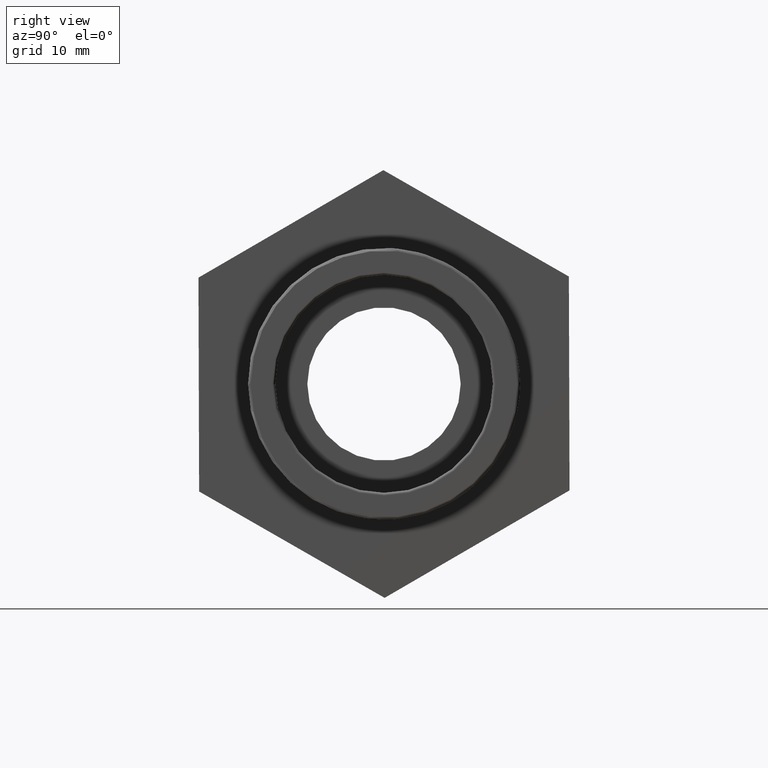
[diagram: clean part render]
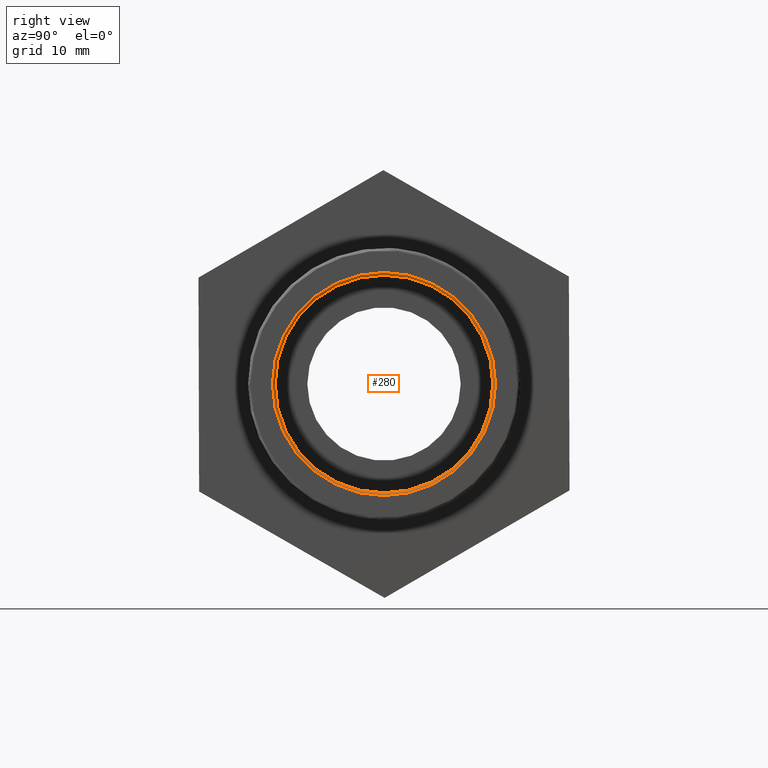
[diagram: same view with one face highlighted and labeled with its STEP entity id]
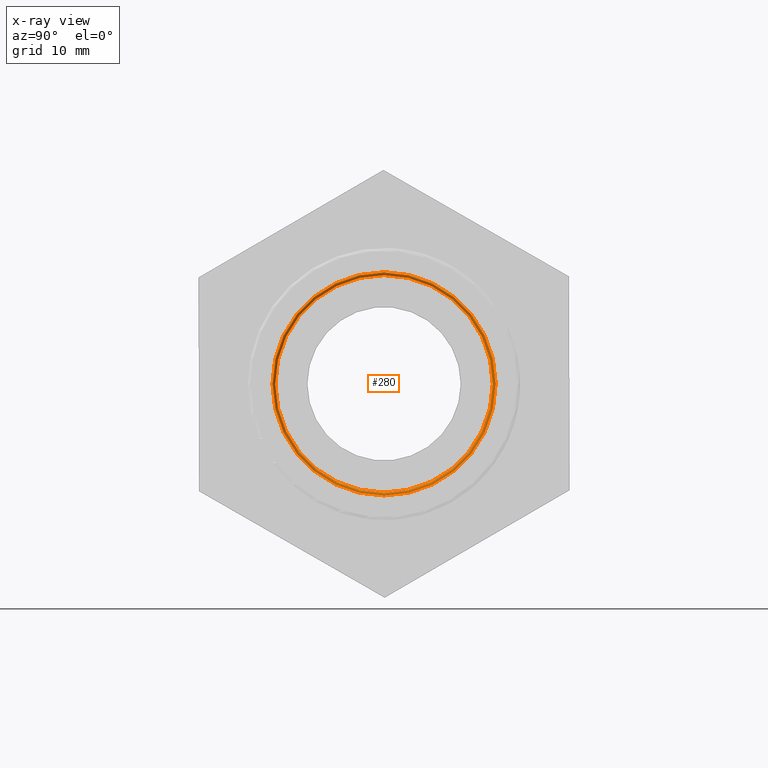
[diagram: x-ray of the same camera — body ghosted, the highlighted face saturated]
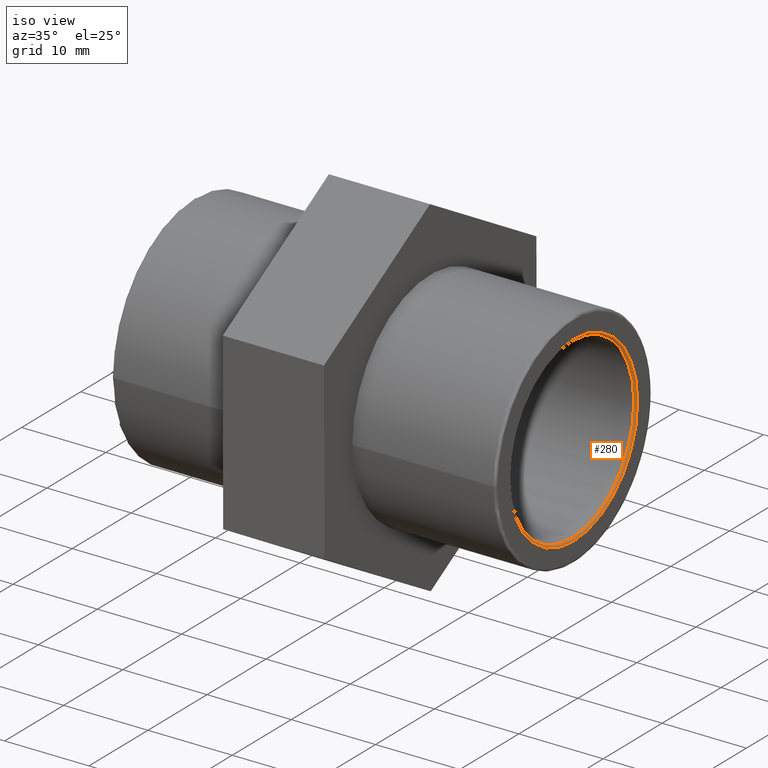
[diagram: same view with one face highlighted and labeled with its STEP entity id]
A machine part, right view. The second image highlights one B-rep face of the part: STEP entity #280.
The next image is the same camera in x-ray: the body ghosted, the highlighted face saturated — about 0% of this face is hidden behind the body in this view.
A second angle (iso view) of the same face is appended — the face is thin or edge-on in the first view.
In plain terms, the highlighted toroidal blend (fillet) surface has major radius 10.8408 mm and minor (blend) radius 0.2644 mm.
Its self-contained STEP definition (entity closure, byte-faithful):
#68=FACE_BOUND('',#105,.T.);
#83=FACE_OUTER_BOUND('',#104,.T.);
#104=EDGE_LOOP('',(#212));
#105=EDGE_LOOP('',(#213));
#140=CIRCLE('',#304,10.5764);
#141=CIRCLE('',#305,10.84081);
#154=VERTEX_POINT('',#430);
#155=VERTEX_POINT('',#432);
#180=EDGE_CURVE('',#154,#154,#140,.T.);
#181=EDGE_CURVE('',#155,#155,#141,.T.);
#212=ORIENTED_EDGE('',*,*,#180,.T.);
#213=ORIENTED_EDGE('',*,*,#181,.T.);
#276=TOROIDAL_SURFACE('',#303,10.84081,0.26441);
#280=ADVANCED_FACE('',(#83,#68),#276,.T.);
#303=AXIS2_PLACEMENT_3D('',#429,#340,#341);
#304=AXIS2_PLACEMENT_3D('',#431,#342,#343);
#305=AXIS2_PLACEMENT_3D('',#433,#344,#345);
#340=DIRECTION('center_axis',(-1.,-1.83697019872103E-16,0.));
#341=DIRECTION('ref_axis',(0.,0.,1.));
#342=DIRECTION('center_axis',(-1.,-1.83697019872103E-16,0.));
#343=DIRECTION('ref_axis',(-1.83700530718772E-16,1.,6.12323399573677E-17));
#344=DIRECTION('center_axis',(1.,1.83697019872103E-16,0.));
#345=DIRECTION('ref_axis',(-1.83697019872103E-16,1.,6.12323399573677E-17));
#429=CARTESIAN_POINT('Origin',(22.23559,8.21779456522025E-15,0.));
#430=CARTESIAN_POINT('',(22.23559,-10.5764,6.47617720325104E-16));
#431=CARTESIAN_POINT('Origin',(22.23559,8.21779456522025E-15,0.));
#432=CARTESIAN_POINT('',(22.5,-10.84081,-1.99142448999969E-15));
#433=CARTESIAN_POINT('Origin',(22.5,8.26636589424463E-15,0.));